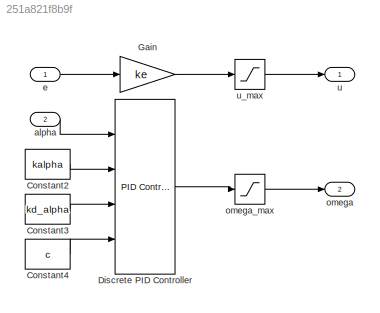
MODEL slx_251a821f8b9f
KIND model
CONFIG AbsTol = auto
CONFIG EnableMultiTasking = off
CONFIG FixedStep = 50e-3
CONFIG MaxStep = auto
CONFIG MinStep = auto
CONFIG RelTol = 1e-3
CONFIG SampleTimeConstraint = Unconstrained
CONFIG SolverName = FixedStepDiscrete
CONFIG StartTime = 0.0
CONFIG StopTime = Inf
BLOCK [Constant] Constant2
  Value = kalpha
BLOCK [Constant] Constant3
  Value = kd_alpha
BLOCK [Constant] Constant4
  Value = c
BLOCK [Reference] Discrete PID Controller  REF=slpidlib/PID Controller
  Ports = [4, 1]
  SourceBlock = slpidlib/PID Controller
  SourceProductBaseCode = SL
  SourceType = PID 1dof
BLOCK [Gain] Gain
  Gain = ke
BLOCK [Inport] alpha
  Port = 2
BLOCK [Inport] e
BLOCK [Outport] omega
  Port = 2
BLOCK [Saturate] omega_max
  LowerLimit = -omega_max
  UpperLimit = omega_max
BLOCK [Outport] u
BLOCK [Saturate] u_max
  LowerLimit = -u_max
  UpperLimit = u_max
LINE Constant2:1 -> Discrete PID Controller:2
LINE Constant3:1 -> Discrete PID Controller:3
LINE Constant4:1 -> Discrete PID Controller:4
LINE Discrete PID Controller:1 -> omega_max:1
LINE Gain:1 -> u_max:1
LINE alpha:1 -> Discrete PID Controller:1
LINE e:1 -> Gain:1
LINE omega_max:1 -> omega:1
LINE u_max:1 -> u:1
